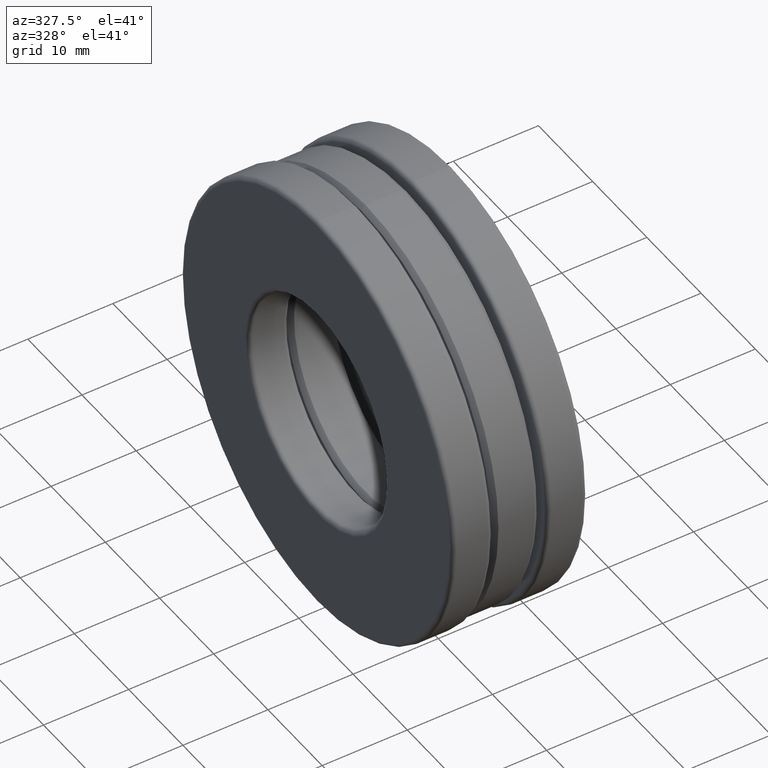
[diagram: clean part render]
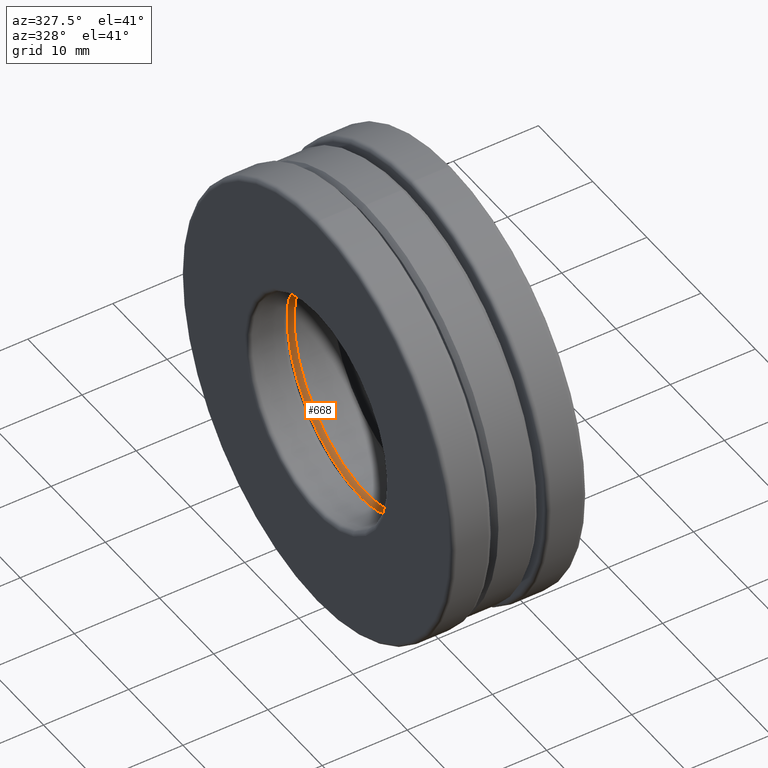
[diagram: same view with one face highlighted and labeled with its STEP entity id]
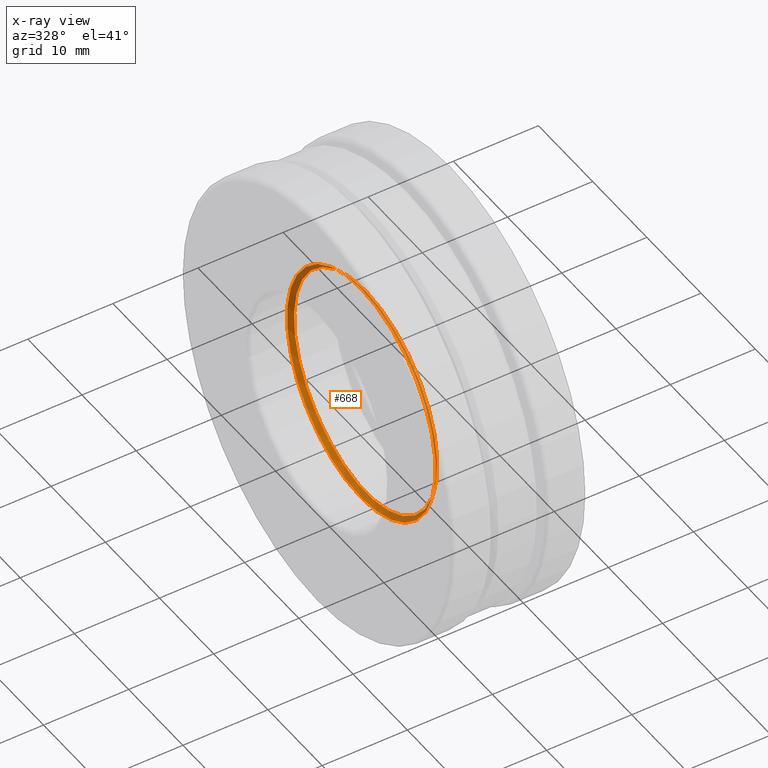
[diagram: x-ray of the same camera — body ghosted, the highlighted face saturated]
A machine part, auxiliary view. The second image highlights one B-rep face of the part: STEP entity #668.
The next image is the same camera in x-ray: the body ghosted, the highlighted face saturated — about 40% of this face is hidden behind the body in this view.
In plain terms, the highlighted conical surface has half-angle 45 deg.
Its self-contained STEP definition (entity closure, byte-faithful):
#25 = CIRCLE ( 'NONE', #429, 0.5200000000000000200 ) ;
#26 = CARTESIAN_POINT ( 'NONE',  ( -0.1049999999999999500, 0.0000000000000000000, 0.0000000000000000000 ) ) ;
#134 = DIRECTION ( 'NONE',  ( -1.000000000000000000, -0.0000000000000000000, -0.0000000000000000000 ) ) ;
#142 = EDGE_LOOP ( 'NONE', ( #197 ) ) ;
#166 = VERTEX_POINT ( 'NONE', #877 ) ;
#179 = CARTESIAN_POINT ( 'NONE',  ( -0.1049999999999999500, 0.0000000000000000000, 0.5399999999999999200 ) ) ;
#197 = ORIENTED_EDGE ( 'NONE', *, *, #1031, .F. ) ;
#257 = EDGE_CURVE ( 'NONE', #436, #436, #1163, .T. ) ;
#417 = DIRECTION ( 'NONE',  ( -1.000000000000000000, -0.0000000000000000000, -0.0000000000000000000 ) ) ;
#429 = AXIS2_PLACEMENT_3D ( 'NONE', #901, #455, #1131 ) ;
#436 = VERTEX_POINT ( 'NONE', #179 ) ;
#455 = DIRECTION ( 'NONE',  ( -1.000000000000000000, -0.0000000000000000000, -0.0000000000000000000 ) ) ;
#668 = ADVANCED_FACE ( 'NONE', ( #1428, #1260 ), #1467, .F. ) ;
#727 = AXIS2_PLACEMENT_3D ( 'NONE', #26, #134, #943 ) ;
#877 = CARTESIAN_POINT ( 'NONE',  ( -0.08499999999999995100, 0.0000000000000000000, 0.5200000000000000200 ) ) ;
#901 = CARTESIAN_POINT ( 'NONE',  ( -0.08499999999999995100, 0.0000000000000000000, 0.0000000000000000000 ) ) ;
#943 = DIRECTION ( 'NONE',  ( 0.0000000000000000000, 0.0000000000000000000, 1.000000000000000000 ) ) ;
#1031 = EDGE_CURVE ( 'NONE', #166, #166, #25, .T. ) ;
#1077 = AXIS2_PLACEMENT_3D ( 'NONE', #1204, #417, #1292 ) ;
#1131 = DIRECTION ( 'NONE',  ( 0.0000000000000000000, 0.0000000000000000000, 1.000000000000000000 ) ) ;
#1163 = CIRCLE ( 'NONE', #1077, 0.5399999999999999200 ) ;
#1195 = ORIENTED_EDGE ( 'NONE', *, *, #257, .T. ) ;
#1204 = CARTESIAN_POINT ( 'NONE',  ( -0.1049999999999999500, 0.0000000000000000000, 0.0000000000000000000 ) ) ;
#1260 = FACE_OUTER_BOUND ( 'NONE', #1315, .T. ) ;
#1292 = DIRECTION ( 'NONE',  ( 0.0000000000000000000, 0.0000000000000000000, 1.000000000000000000 ) ) ;
#1315 = EDGE_LOOP ( 'NONE', ( #1195 ) ) ;
#1428 = FACE_BOUND ( 'NONE', #142, .T. ) ;
#1467 = CONICAL_SURFACE ( 'NONE', #727, 0.5399999999999999200, 0.7853981633974479500 ) ;